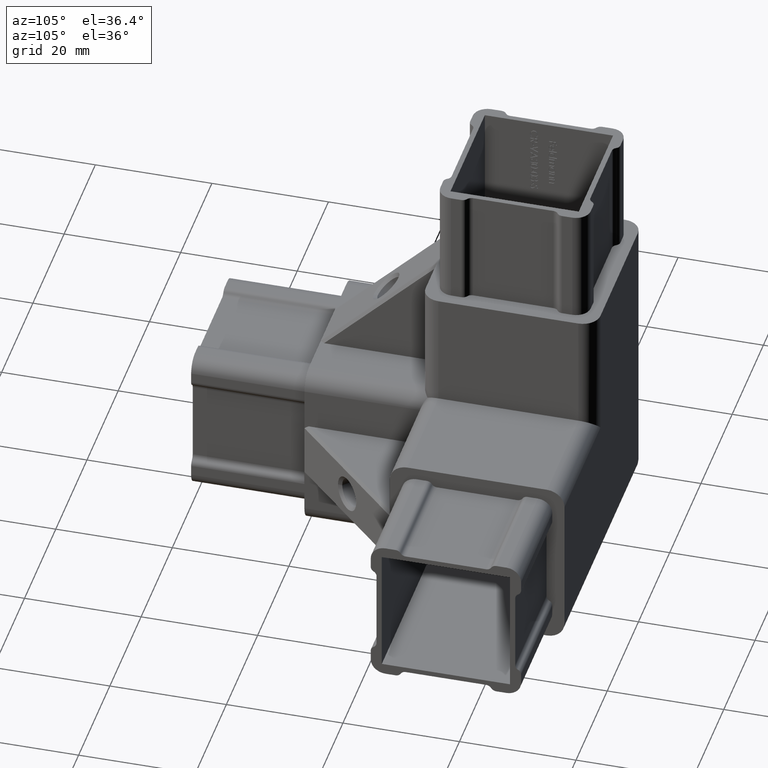
[diagram: clean part render]
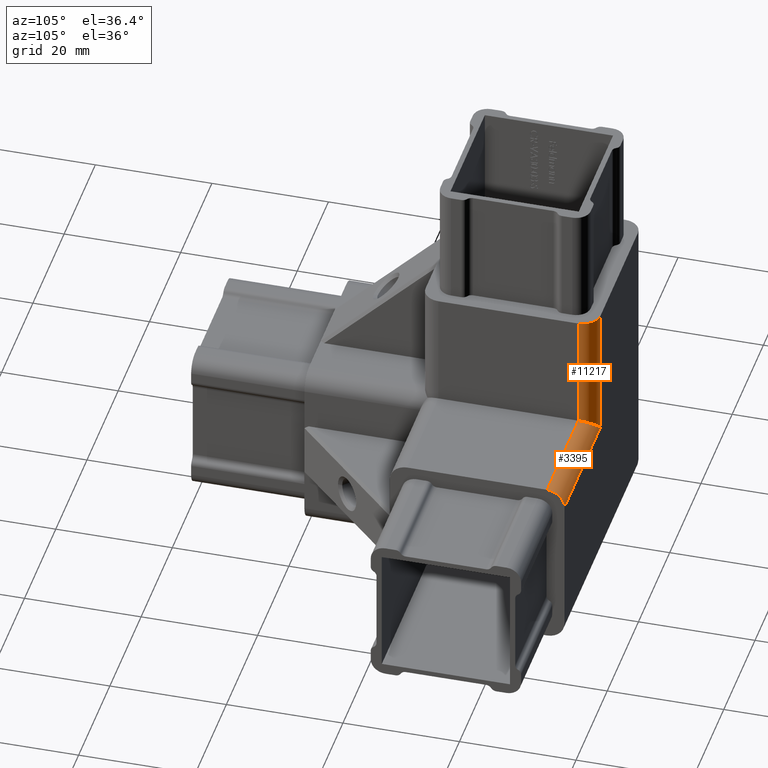
[diagram: same view with one multi-face feature highlighted, each face labeled with its STEP entity id]
A machine part, auxiliary view. The highlighted faces form ONE feature: a constant-radius fillet chain: 2 tangent blend faces with common blend radius 3 mm. The faces share edges in the B-rep.
Their STEP definitions:
[1] entity #11217 (Cylinder):
#37 = VERTEX_POINT ( 'NONE', #16820 ) ;
#780 = CARTESIAN_POINT ( 'NONE',  ( 27.00000000000000000, 46.99999999999998600, 28.33333333333337800 ) ) ;
#1420 = LINE ( 'NONE', #10958, #4939 ) ;
#2059 = ORIENTED_EDGE ( 'NONE', *, *, #4239, .F. ) ;
#2800 = VERTEX_POINT ( 'NONE', #6006 ) ;
#4239 = EDGE_CURVE ( 'NONE', #2800, #19300, #14566, .T. ) ;
#4247 = ORIENTED_EDGE ( 'NONE', *, *, #18481, .F. ) ;
#4283 = EDGE_LOOP ( 'NONE', ( #18397, #18849, #2059, #4247 ) ) ;
#4511 = CYLINDRICAL_SURFACE ( 'NONE', #12796, 3.000000000000002700 ) ;
#4634 = CARTESIAN_POINT ( 'NONE',  ( 27.00000000000000000, 49.99999999999999300, 5.333333333333373000 ) ) ;
#4939 = VECTOR ( 'NONE', #15540, 1000.000000000000000 ) ;
#5380 = VERTEX_POINT ( 'NONE', #12355 ) ;
#5945 = CARTESIAN_POINT ( 'NONE',  ( 28.75735931288071300, 49.99999999999998600, 7.090692646214088200 ) ) ;
#6006 = CARTESIAN_POINT ( 'NONE',  ( 30.00000000000000000, 46.99999999999998600, 28.33333333333337800 ) ) ;
#6159 = FACE_OUTER_BOUND ( 'NONE', #4283, .T. ) ;
#6239 = CARTESIAN_POINT ( 'NONE',  ( 27.00000000000000000, 49.99999999999998600, 28.33333333333337800 ) ) ;
#7437 = LINE ( 'NONE', #12419, #18987 ) ;
#7489 = DIRECTION ( 'NONE',  ( 0.0000000000000000000, 2.775557561562891400E-016, -1.000000000000000000 ) ) ;
#7706 = EDGE_CURVE ( 'NONE', #5380, #37, #8576, .T. ) ;
#8371 = DIRECTION ( 'NONE',  ( 0.0000000000000000000, 1.000000000000000000, 0.0000000000000000000 ) ) ;
#8576 =( BOUNDED_CURVE ( )  B_SPLINE_CURVE ( 3, ( #12721, #15003, #5945, #4634 ),
 .UNSPECIFIED., .F., .T. ) 
 B_SPLINE_CURVE_WITH_KNOTS ( ( 4, 4 ),
 ( 3.141592653589793100, 4.712388980384689700 ),
 .UNSPECIFIED. ) 
 CURVE ( )  GEOMETRIC_REPRESENTATION_ITEM ( )  RATIONAL_B_SPLINE_CURVE ( ( 1.000000000000000000, 0.8047378541243649400, 0.8047378541243649400, 1.000000000000000000 ) ) 
 REPRESENTATION_ITEM ( '' )  );
#9027 = AXIS2_PLACEMENT_3D ( 'NONE', #780, #19002, #8371 ) ;
#9171 = CARTESIAN_POINT ( 'NONE',  ( 27.00000000000000000, 46.99999999999999300, 1.304512053934558800E-014 ) ) ;
#9400 = DIRECTION ( 'NONE',  ( 0.0000000000000000000, -2.775557561562891400E-016, 1.000000000000000000 ) ) ;
#10958 = CARTESIAN_POINT ( 'NONE',  ( 27.00000000000000000, 49.99999999999999300, 8.333333333333369500 ) ) ;
#11217 = ADVANCED_FACE ( 'NONE', ( #6159 ), #4511, .T. ) ;
#12248 = EDGE_CURVE ( 'NONE', #19300, #37, #1420, .T. ) ;
#12355 = CARTESIAN_POINT ( 'NONE',  ( 30.00000000000000000, 46.99999999999999300, 8.333333333333373000 ) ) ;
#12419 = CARTESIAN_POINT ( 'NONE',  ( 30.00000000000000000, 46.99999999999998600, 28.33333333333337800 ) ) ;
#12721 = CARTESIAN_POINT ( 'NONE',  ( 30.00000000000000000, 46.99999999999999300, 8.333333333333373000 ) ) ;
#12796 = AXIS2_PLACEMENT_3D ( 'NONE', #9171, #7489, #18105 ) ;
#14566 = CIRCLE ( 'NONE', #9027, 3.000000000000002700 ) ;
#15003 = CARTESIAN_POINT ( 'NONE',  ( 30.00000000000000000, 48.75735931288069500, 8.333333333333371200 ) ) ;
#15540 = DIRECTION ( 'NONE',  ( -0.0000000000000000000, 2.775557561562891400E-016, -1.000000000000000000 ) ) ;
#16820 = CARTESIAN_POINT ( 'NONE',  ( 27.00000000000000000, 49.99999999999999300, 5.333333333333373000 ) ) ;
#18105 = DIRECTION ( 'NONE',  ( 0.0000000000000000000, 1.000000000000000000, 2.775557561562886400E-016 ) ) ;
#18397 = ORIENTED_EDGE ( 'NONE', *, *, #7706, .T. ) ;
#18481 = EDGE_CURVE ( 'NONE', #5380, #2800, #7437, .T. ) ;
#18849 = ORIENTED_EDGE ( 'NONE', *, *, #12248, .F. ) ;
#18987 = VECTOR ( 'NONE', #9400, 1000.000000000000000 ) ;
#19002 = DIRECTION ( 'NONE',  ( -0.0000000000000000000, -1.156482317317871500E-016, 1.000000000000000000 ) ) ;
#19300 = VERTEX_POINT ( 'NONE', #6239 ) ;
[2] entity #3395 (Cylinder):
#37 = VERTEX_POINT ( 'NONE', #16820 ) ;
#1708 = DIRECTION ( 'NONE',  ( 1.000000000000000000, 0.0000000000000000000, 0.0000000000000000000 ) ) ;
#1813 = EDGE_CURVE ( 'NONE', #6311, #5380, #15836, .T. ) ;
#2427 = EDGE_CURVE ( 'NONE', #37, #17921, #5282, .T. ) ;
#3395 = ADVANCED_FACE ( 'NONE', ( #9809 ), #5836, .T. ) ;
#4634 = CARTESIAN_POINT ( 'NONE',  ( 27.00000000000000000, 49.99999999999999300, 5.333333333333373000 ) ) ;
#4987 = ORIENTED_EDGE ( 'NONE', *, *, #5935, .F. ) ;
#5282 = LINE ( 'NONE', #14242, #9046 ) ;
#5380 = VERTEX_POINT ( 'NONE', #12355 ) ;
#5710 = CARTESIAN_POINT ( 'NONE',  ( 50.00000000000000000, 46.99999999999999300, 5.333333333333372100 ) ) ;
#5836 = CYLINDRICAL_SURFACE ( 'NONE', #12852, 3.000000000000000900 ) ;
#5935 = EDGE_CURVE ( 'NONE', #17921, #6311, #16642, .T. ) ;
#5945 = CARTESIAN_POINT ( 'NONE',  ( 28.75735931288071300, 49.99999999999998600, 7.090692646214088200 ) ) ;
#6311 = VERTEX_POINT ( 'NONE', #9399 ) ;
#7036 = CARTESIAN_POINT ( 'NONE',  ( 50.00000000000000000, 46.99999999999999300, 8.333333333333373000 ) ) ;
#7561 = AXIS2_PLACEMENT_3D ( 'NONE', #10699, #1708, #12244 ) ;
#7706 = EDGE_CURVE ( 'NONE', #5380, #37, #8576, .T. ) ;
#8576 =( BOUNDED_CURVE ( )  B_SPLINE_CURVE ( 3, ( #12721, #15003, #5945, #4634 ),
 .UNSPECIFIED., .F., .T. ) 
 B_SPLINE_CURVE_WITH_KNOTS ( ( 4, 4 ),
 ( 3.141592653589793100, 4.712388980384689700 ),
 .UNSPECIFIED. ) 
 CURVE ( )  GEOMETRIC_REPRESENTATION_ITEM ( )  RATIONAL_B_SPLINE_CURVE ( ( 1.000000000000000000, 0.8047378541243649400, 0.8047378541243649400, 1.000000000000000000 ) ) 
 REPRESENTATION_ITEM ( '' )  );
#9046 = VECTOR ( 'NONE', #17193, 1000.000000000000000 ) ;
#9399 = CARTESIAN_POINT ( 'NONE',  ( 50.00000000000000000, 46.99999999999999300, 8.333333333333373000 ) ) ;
#9809 = FACE_OUTER_BOUND ( 'NONE', #10913, .T. ) ;
#9881 = ORIENTED_EDGE ( 'NONE', *, *, #1813, .F. ) ;
#10699 = CARTESIAN_POINT ( 'NONE',  ( 50.00000000000000000, 46.99999999999999300, 5.333333333333372100 ) ) ;
#10913 = EDGE_LOOP ( 'NONE', ( #4987, #18782, #17291, #9881 ) ) ;
#12244 = DIRECTION ( 'NONE',  ( 0.0000000000000000000, 0.0000000000000000000, -1.000000000000000000 ) ) ;
#12355 = CARTESIAN_POINT ( 'NONE',  ( 30.00000000000000000, 46.99999999999999300, 8.333333333333373000 ) ) ;
#12721 = CARTESIAN_POINT ( 'NONE',  ( 30.00000000000000000, 46.99999999999999300, 8.333333333333373000 ) ) ;
#12852 = AXIS2_PLACEMENT_3D ( 'NONE', #5710, #16260, #13631 ) ;
#12975 = CARTESIAN_POINT ( 'NONE',  ( 50.00000000000000000, 50.00000000000000000, 5.333333333333373000 ) ) ;
#13186 = DIRECTION ( 'NONE',  ( -1.000000000000000000, 0.0000000000000000000, 0.0000000000000000000 ) ) ;
#13631 = DIRECTION ( 'NONE',  ( 0.0000000000000000000, 0.0000000000000000000, 1.000000000000000000 ) ) ;
#14242 = CARTESIAN_POINT ( 'NONE',  ( 30.00000000000000000, 49.99999999999999300, 5.333333333333373900 ) ) ;
#15003 = CARTESIAN_POINT ( 'NONE',  ( 30.00000000000000000, 48.75735931288069500, 8.333333333333371200 ) ) ;
#15836 = LINE ( 'NONE', #7036, #17467 ) ;
#16260 = DIRECTION ( 'NONE',  ( -1.000000000000000000, 0.0000000000000000000, 0.0000000000000000000 ) ) ;
#16642 = CIRCLE ( 'NONE', #7561, 3.000000000000000000 ) ;
#16820 = CARTESIAN_POINT ( 'NONE',  ( 27.00000000000000000, 49.99999999999999300, 5.333333333333373000 ) ) ;
#17193 = DIRECTION ( 'NONE',  ( 1.000000000000000000, -0.0000000000000000000, -0.0000000000000000000 ) ) ;
#17291 = ORIENTED_EDGE ( 'NONE', *, *, #7706, .F. ) ;
#17467 = VECTOR ( 'NONE', #13186, 1000.000000000000000 ) ;
#17921 = VERTEX_POINT ( 'NONE', #12975 ) ;
#18782 = ORIENTED_EDGE ( 'NONE', *, *, #2427, .F. ) ;